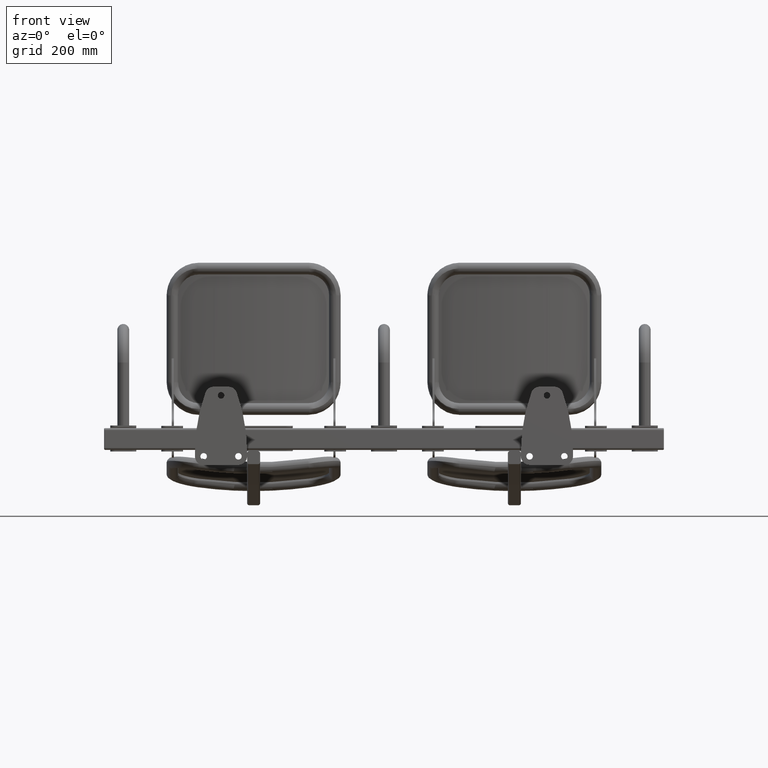
[diagram: clean part render]
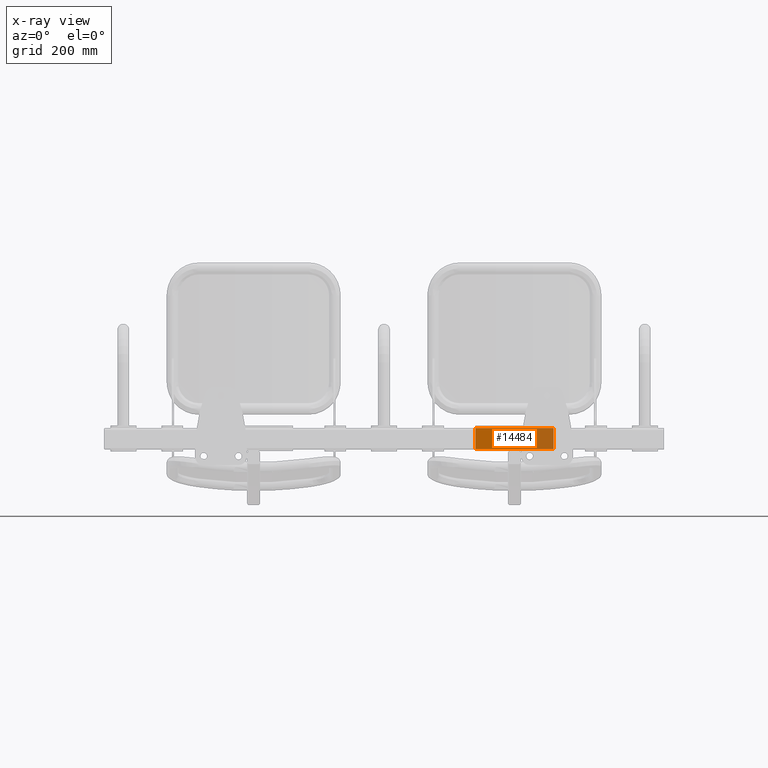
[diagram: x-ray — body ghosted, one internal face saturated and labeled with its STEP entity id]
A machine part, front view, then the same camera in x-ray: the body is ghosted and one INTERNAL B-rep face — a face not visible from any outside direction — is saturated and labeled: STEP entity #14484.
In plain terms, the highlighted planar face has unit normal (0, -1, -0).
Its self-contained STEP definition (entity closure, byte-faithful):
#101 = AXIS2_PLACEMENT_3D ( 'NONE', #2878, #3387, #3388 ) ;
#1950 = ORIENTED_EDGE ( 'NONE', *, *, #16802, .T. ) ;
#1951 = ORIENTED_EDGE ( 'NONE', *, *, #16806, .T. ) ;
#1952 = ORIENTED_EDGE ( 'NONE', *, *, #16805, .F. ) ;
#1953 = ORIENTED_EDGE ( 'NONE', *, *, #16804, .F. ) ;
#2276 = VERTEX_POINT ( 'NONE', #12587 ) ;
#2277 = VERTEX_POINT ( 'NONE', #12588 ) ;
#2278 = VERTEX_POINT ( 'NONE', #12589 ) ;
#2282 = VERTEX_POINT ( 'NONE', #12593 ) ;
#2876 = PLANE ( 'NONE',  #101 ) ;
#2878 = CARTESIAN_POINT ( 'NONE',  ( 90.00000000000000000, -4.492917384351786200, 382.8460752030026700 ) ) ;
#3387 = DIRECTION ( 'NONE',  ( 0.0000000000000000000, -0.1218693434051495300, 0.9925461516413217600 ) ) ;
#3388 = DIRECTION ( 'NONE',  ( 0.0000000000000000000, -0.9925461516413217600, -0.1218693434051495300 ) ) ;
#8357 = LINE ( 'NONE', #17702, #8359 ) ;
#8358 = LINE ( 'NONE', #17713, #8366 ) ;
#8359 = VECTOR ( 'NONE', #17703, 1000.000000000000000 ) ;
#8360 = LINE ( 'NONE', #17711, #8362 ) ;
#8361 = LINE ( 'NONE', #17717, #8364 ) ;
#8362 = VECTOR ( 'NONE', #17707, 1000.000000000000000 ) ;
#8364 = VECTOR ( 'NONE', #17719, 1000.000000000000000 ) ;
#8366 = VECTOR ( 'NONE', #17720, 1000.000000000000000 ) ;
#12515 = EDGE_LOOP ( 'NONE', ( #1953, #1952, #1951, #1950 ) ) ;
#12587 = CARTESIAN_POINT ( 'NONE',  ( 90.00000000000000000, 43.14929789443161900, 388.6958036864497800 ) ) ;
#12588 = CARTESIAN_POINT ( 'NONE',  ( -90.00000000000000000, 43.14929789443161900, 388.6958036864497800 ) ) ;
#12589 = CARTESIAN_POINT ( 'NONE',  ( -90.00000000000000000, -4.492917384351789800, 382.8460752030026700 ) ) ;
#12593 = CARTESIAN_POINT ( 'NONE',  ( 90.00000000000000000, -4.492917384351789800, 382.8460752030026700 ) ) ;
#13773 = FACE_OUTER_BOUND ( 'NONE', #12515, .T. ) ;
#14484 = ADVANCED_FACE ( 'NONE', ( #13773 ), #2876, .T. ) ;
#16802 = EDGE_CURVE ( 'NONE', #2276, #2277, #8357, .T. ) ;
#16804 = EDGE_CURVE ( 'NONE', #2278, #2277, #8360, .T. ) ;
#16805 = EDGE_CURVE ( 'NONE', #2282, #2278, #8361, .T. ) ;
#16806 = EDGE_CURVE ( 'NONE', #2282, #2276, #8358, .T. ) ;
#17702 = CARTESIAN_POINT ( 'NONE',  ( 90.00000000000000000, 43.14929789443161900, 388.6958036864497800 ) ) ;
#17703 = DIRECTION ( 'NONE',  ( -1.000000000000000000, -0.0000000000000000000, -0.0000000000000000000 ) ) ;
#17707 = DIRECTION ( 'NONE',  ( 0.0000000000000000000, 0.9925461516413217600, 0.1218693434051495300 ) ) ;
#17711 = CARTESIAN_POINT ( 'NONE',  ( -90.00000000000000000, -4.492917384351786200, 382.8460752030026700 ) ) ;
#17713 = CARTESIAN_POINT ( 'NONE',  ( 90.00000000000000000, -4.492917384351786200, 382.8460752030026700 ) ) ;
#17717 = CARTESIAN_POINT ( 'NONE',  ( 90.00000000000000000, -4.492917384351789800, 382.8460752030026700 ) ) ;
#17719 = DIRECTION ( 'NONE',  ( -1.000000000000000000, -0.0000000000000000000, -0.0000000000000000000 ) ) ;
#17720 = DIRECTION ( 'NONE',  ( 0.0000000000000000000, 0.9925461516413217600, 0.1218693434051495300 ) ) ;